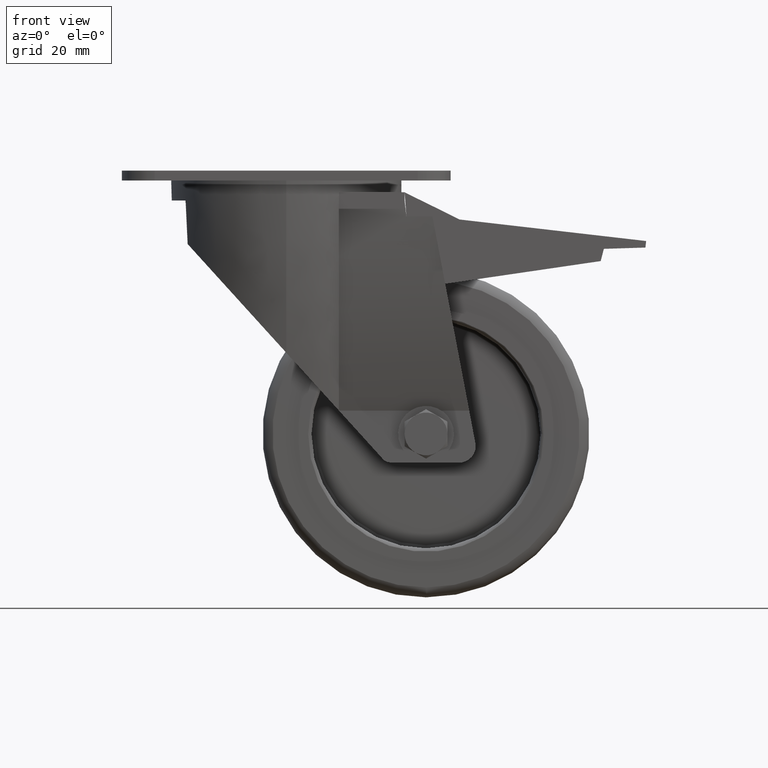
[diagram: clean part render]
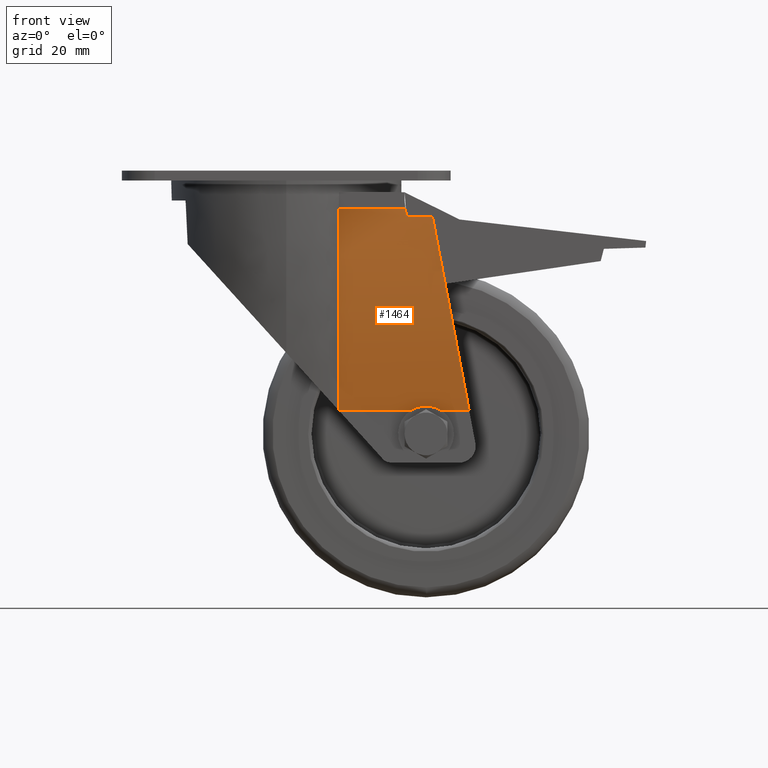
[diagram: same view with one face highlighted and labeled with its STEP entity id]
A machine part, front view. The second image highlights one B-rep face of the part: STEP entity #1464.
In plain terms, the highlighted face is a freeform B-spline surface patch.
Its self-contained STEP definition (entity closure, byte-faithful):
#1141=CARTESIAN_POINT('',(-34.001522241716145,-19.694907978292079,-73.002270044212594));
#1142=VERTEX_POINT('',#1141);
#1155=CARTESIAN_POINT('',(-34.001522241716089,-31.127938871916921,-9.075096515550339));
#1156=VERTEX_POINT('',#1155);
#1157=CARTESIAN_POINT('',(-34.001548567304553,-19.694916653689418,-73.002303609076989));
#1158=CARTESIAN_POINT('',(-34.001548567304553,-20.597546204401013,-70.618475198007786));
#1159=CARTESIAN_POINT('',(-34.001508079311691,-22.394029293229167,-65.440520095627846));
#1160=CARTESIAN_POINT('',(-34.001525860142863,-24.666945599118677,-57.610788757117859));
#1161=CARTESIAN_POINT('',(-34.001521300709669,-26.612438536197274,-49.501394333266774));
#1162=CARTESIAN_POINT('',(-34.001522706064918,-28.545640815794812,-39.598414601440084));
#1163=CARTESIAN_POINT('',(-34.001522122031304,-30.064825249792658,-28.568642359967548));
#1164=CARTESIAN_POINT('',(-34.001522261573371,-30.892679774494251,-17.731839922797171));
#1165=CARTESIAN_POINT('',(-34.001522241716089,-31.091744523804390,-11.548516832028550));
#1166=CARTESIAN_POINT('',(-34.001522241716145,-31.127938871916864,-9.075096515550339));
#1167=B_SPLINE_CURVE_WITH_KNOTS('',3,(#1157,#1158,#1159,#1160,#1161,#1162,#1163,#1164,#1165,#1166),.UNSPECIFIED.,.F.,.U.,(4,1,1,1,1,1,1,4),(0.0,7.647837345459369,16.435400913055616,24.451326626313783,32.660345208751401,46.698391379926420,57.833003080009419,65.254437426247080),.UNSPECIFIED.);
#1168=EDGE_CURVE('',#1142,#1156,#1167,.T.);
#1375=CARTESIAN_POINT('',(-34.001522241716145,-31.127938871916864,-9.075096515550339));
#1376=CARTESIAN_POINT('',(-34.001522241716089,-31.091744523804390,-11.548516832028550));
#1377=CARTESIAN_POINT('',(-34.001522241716145,-30.892679774494365,-17.731839922797171));
#1378=CARTESIAN_POINT('',(-34.001522241716145,-30.064825249792658,-28.568642359967605));
#1379=CARTESIAN_POINT('',(-34.001522241716089,-28.545640815794869,-39.598414601440084));
#1380=CARTESIAN_POINT('',(-34.001522241716145,-26.612438536197274,-49.501394333266830));
#1381=CARTESIAN_POINT('',(-34.001522241716089,-24.666945599118733,-57.610788757117859));
#1382=CARTESIAN_POINT('',(-34.001522241716145,-22.394029293229167,-65.440520095627903));
#1383=CARTESIAN_POINT('',(-34.001522241716145,-20.597546204401070,-70.618475198007786));
#1384=CARTESIAN_POINT('',(-34.001522241716145,-19.694916795246812,-73.002276034714328));
#1385=CARTESIAN_POINT('',(5.628722900210050,-31.127938871916850,-9.075096515550339));
#1386=CARTESIAN_POINT('',(5.628722900210107,-31.091744523804376,-11.548516832028550));
#1387=CARTESIAN_POINT('',(5.628722900210050,-30.892679774494351,-17.731839922797171));
#1388=CARTESIAN_POINT('',(5.628722900210050,-30.064825249792644,-28.568642359967605));
#1389=CARTESIAN_POINT('',(5.628722900210107,-28.545640815794854,-39.598414601440084));
#1390=CARTESIAN_POINT('',(5.628722900210050,-26.612438536197260,-49.501394333266830));
#1391=CARTESIAN_POINT('',(5.628722900210107,-24.666945599118719,-57.610788757117859));
#1392=CARTESIAN_POINT('',(5.628722900210050,-22.394029293229153,-65.440520095627903));
#1393=CARTESIAN_POINT('',(5.628722900210050,-20.597546204401056,-70.618475198007786));
#1394=CARTESIAN_POINT('',(5.628722900210050,-19.694916795246797,-73.002276034714328));
#1395=B_SPLINE_SURFACE_WITH_KNOTS('',3,1,((#1375,#1385),(#1376,#1386),(#1377,#1387),(#1378,#1388),(#1379,#1389),(#1380,#1390),(#1381,#1391),(#1382,#1392),(#1383,#1393),(#1384,#1394)),.UNSPECIFIED.,.F.,.F.,.U.,(4,1,1,1,1,1,1,4),(2,2),(0.0,7.421434346237660,18.556046046320660,32.594092217495678,40.803110799933293,48.819036513191463,57.606600080787715,65.254437426247080),(0.0,1.0),.UNSPECIFIED.);
#1396=CARTESIAN_POINT('',(5.627722900162553,-19.694916795246868,-73.002276034714271));
#1397=VERTEX_POINT('',#1396);
#1398=CARTESIAN_POINT('',(-5.557483688947116,-31.002188084314138,-13.899939804415279));
#1399=VERTEX_POINT('',#1398);
#1400=CARTESIAN_POINT('',(5.627722900162553,-19.694916795246868,-73.002276034714271));
#1401=CARTESIAN_POINT('',(5.226136655579467,-20.498404024835693,-70.880304923700237));
#1402=CARTESIAN_POINT('',(4.416929094088857,-21.996531988113830,-66.604473538887987));
#1403=CARTESIAN_POINT('',(2.746809099123652,-24.666376918576546,-57.779603591159685));
#1404=CARTESIAN_POINT('',(0.395721836103917,-27.623678850480204,-45.356520582476264));
#1405=CARTESIAN_POINT('',(-2.163572337087487,-29.708323403412933,-31.833277758917966));
#1406=CARTESIAN_POINT('',(-4.223538927188884,-30.667150355712362,-20.948468697824119));
#1407=CARTESIAN_POINT('',(-5.190277962550510,-30.929409316654311,-15.840245165275913));
#1408=CARTESIAN_POINT('',(-5.557483688947116,-31.002188084314138,-13.899939804415279));
#1409=B_SPLINE_CURVE_WITH_KNOTS('',3,(#1400,#1401,#1402,#1403,#1404,#1405,#1406,#1407,#1408),.UNSPECIFIED.,.F.,.U.,(4,1,1,1,1,1,4),(0.0,6.913392514189065,13.802699261982937,28.104347540639022,45.839920590228871,55.526215115477889,61.454657322101184),.UNSPECIFIED.);
#1410=EDGE_CURVE('',#1397,#1399,#1409,.T.);
#1411=ORIENTED_EDGE('',*,*,#1410,.T.);
#1412=CARTESIAN_POINT('',(-13.467745687016816,-31.002188084314138,-13.899939804415279));
#1413=VERTEX_POINT('',#1412);
#1414=CARTESIAN_POINT('',(-5.557483688947087,-31.002188084314131,-13.899939804415279));
#1415=DIRECTION('',(-1.0,0.0,0.0));
#1416=VECTOR('',#1415,7.910261998069672);
#1417=LINE('',#1414,#1416);
#1418=EDGE_CURVE('',#1399,#1413,#1417,.T.);
#1419=ORIENTED_EDGE('',*,*,#1418,.T.);
#1420=CARTESIAN_POINT('',(-14.000009128813417,-31.127938871916864,-9.075096515550339));
#1421=VERTEX_POINT('',#1420);
#1422=CARTESIAN_POINT('',(-13.467745687016816,-31.002188084314138,-13.899939804415279));
#1423=CARTESIAN_POINT('',(-13.522405963798235,-31.020773103531564,-13.404457212738176));
#1424=CARTESIAN_POINT('',(-13.699790329382097,-31.075407253282105,-11.796509533769832));
#1425=CARTESIAN_POINT('',(-13.877237251910344,-31.111653476620869,-10.187994790768922));
#1426=CARTESIAN_POINT('',(-14.000009128813417,-31.127938871916864,-9.075096515550339));
#1427=B_SPLINE_CURVE_WITH_KNOTS('',3,(#1422,#1423,#1424,#1425,#1426),.UNSPECIFIED.,.F.,.U.,(4,1,4),(0.0,1.496507319290800,4.855845347114250),.UNSPECIFIED.);
#1428=EDGE_CURVE('',#1413,#1421,#1427,.T.);
#1429=ORIENTED_EDGE('',*,*,#1428,.T.);
#1430=CARTESIAN_POINT('',(-14.000009128813417,-31.076558764830292,-11.575096515528966));
#1431=VERTEX_POINT('',#1430);
#1432=CARTESIAN_POINT('',(-14.000009128813417,-31.076558764830292,-11.575096515529079));
#1433=CARTESIAN_POINT('',(-14.000009128813417,-31.098618307817514,-10.741856585610659));
#1434=CARTESIAN_POINT('',(-14.000009128813360,-31.115743408103025,-9.908500335182222));
#1435=CARTESIAN_POINT('',(-14.000009128813417,-31.127938871916864,-9.075096515550339));
#1436=B_SPLINE_CURVE_WITH_KNOTS('',3,(#1432,#1433,#1434,#1435),.UNSPECIFIED.,.F.,.U.,(4,4),(62.753830598488776,65.254437426247023),.UNSPECIFIED.);
#1437=EDGE_CURVE('',#1431,#1421,#1436,.T.);
#1438=ORIENTED_EDGE('',*,*,#1437,.F.);
#1439=CARTESIAN_POINT('',(-33.901945324404267,-31.076558764829667,-11.575096515550111));
#1440=VERTEX_POINT('',#1439);
#1441=CARTESIAN_POINT('',(-14.000009128813417,-31.076558764829546,-11.575096515550111));
#1442=DIRECTION('',(-1.0,0.0,0.0));
#1443=VECTOR('',#1442,19.901936195590906);
#1444=LINE('',#1441,#1443);
#1445=EDGE_CURVE('',#1431,#1440,#1444,.T.);
#1446=ORIENTED_EDGE('',*,*,#1445,.T.);
#1447=CARTESIAN_POINT('',(-34.001522241716145,-31.127938871916864,-9.075096515550339));
#1448=CARTESIAN_POINT('',(-33.985473841088094,-31.119690655369094,-9.638756519054024));
#1449=CARTESIAN_POINT('',(-33.955291638545930,-31.104156872626287,-10.472297739869528));
#1450=CARTESIAN_POINT('',(-33.915733633016032,-31.083701284888900,-11.305307021269240));
#1451=CARTESIAN_POINT('',(-33.901945324424844,-31.076558764789990,-11.575096515550111));
#1452=B_SPLINE_CURVE_WITH_KNOTS('',3,(#1447,#1448,#1449,#1450,#1451),.UNSPECIFIED.,.F.,.U.,(4,1,4),(0.0,1.691865916443072,2.502576076597990),.UNSPECIFIED.);
#1453=EDGE_CURVE('',#1156,#1440,#1452,.T.);
#1454=ORIENTED_EDGE('',*,*,#1453,.F.);
#1455=ORIENTED_EDGE('',*,*,#1168,.F.);
#1456=CARTESIAN_POINT('',(-34.001522241716145,-19.694916795246812,-73.002276034714328));
#1457=DIRECTION('',(1.0,0.0,0.0));
#1458=VECTOR('',#1457,39.629245141878698);
#1459=LINE('',#1456,#1458);
#1460=EDGE_CURVE('',#1142,#1397,#1459,.T.);
#1461=ORIENTED_EDGE('',*,*,#1460,.T.);
#1462=EDGE_LOOP('',(#1411,#1419,#1429,#1438,#1446,#1454,#1455,#1461));
#1463=FACE_OUTER_BOUND('',#1462,.T.);
#1464=ADVANCED_FACE('',(#1463),#1395,.T.);